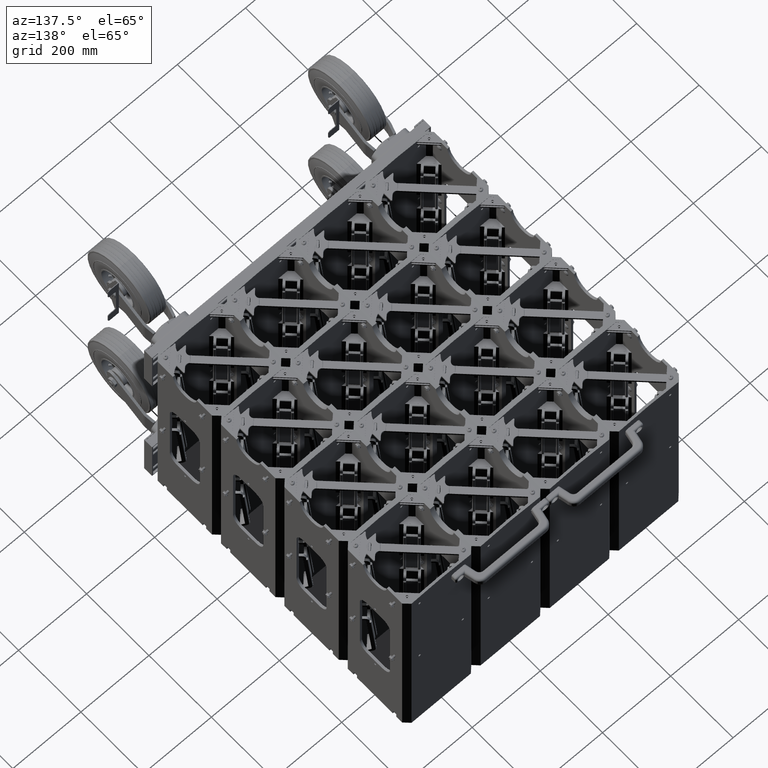
[diagram: clean part render]
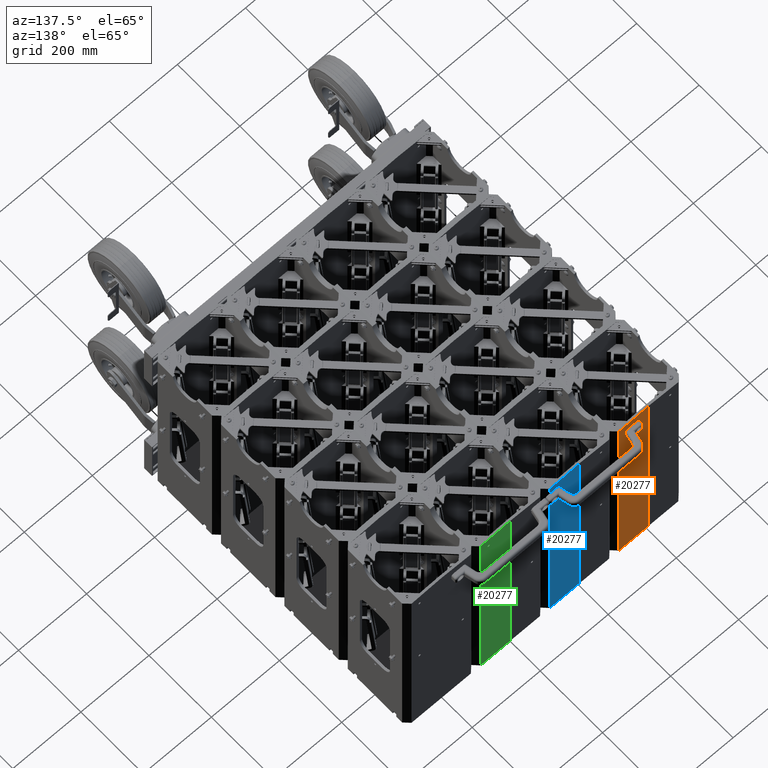
[diagram: same view with three faces highlighted in distinct colors, each labeled with its STEP entity id]
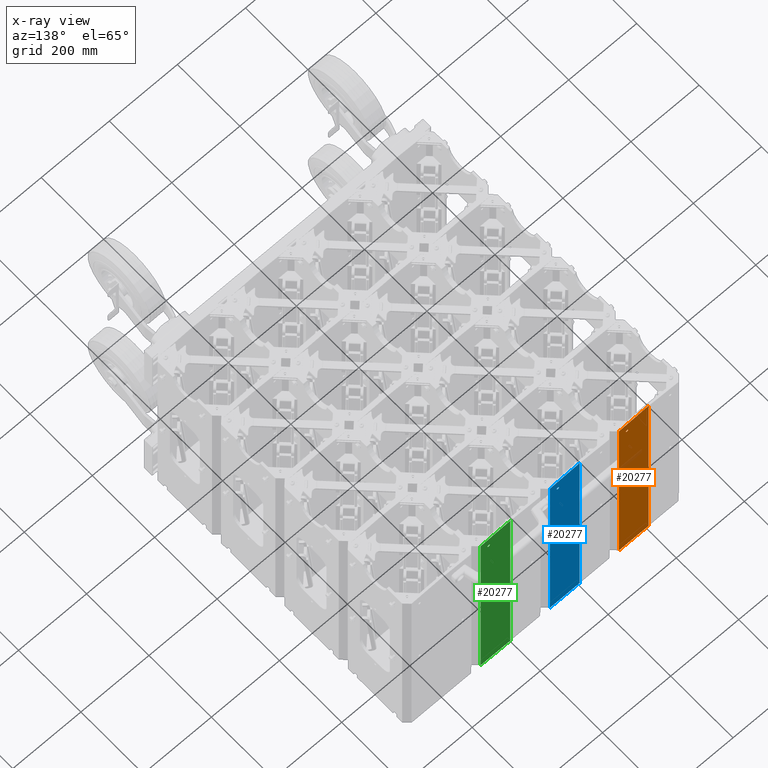
[diagram: x-ray of the same camera — body ghosted, the three highlighted faces saturated]
A machine part, auxiliary view with three faces highlighted in distinct colors.
The next image is the same camera in x-ray (body ghosted, the three faces saturated) — at least one of them is partly hidden behind the body in this view.
Their STEP definitions:

[orange] entity #20277 — the highlighted planar face has unit normal (-0, -1, -0).
#1729 = AXIS2_PLACEMENT_3D ( 'NONE', #6154, #6145, #6155 ) ;
#2236 = AXIS2_PLACEMENT_3D ( 'NONE', #14352, #14359, #14361 ) ;
#2310 = AXIS2_PLACEMENT_3D ( 'NONE', #15229, #15263, #15264 ) ;
#2311 = AXIS2_PLACEMENT_3D ( 'NONE', #15205, #15276, #15277 ) ;
#5755 = CIRCLE ( 'NONE', #1729, 0.1330000000000002000 ) ;
#6145 = DIRECTION ( 'NONE',  ( -1.000000000000000000, -1.365923996832129600E-016, 0.0000000000000000000 ) ) ;
#6154 = CARTESIAN_POINT ( 'NONE',  ( 4.000000000000005300, 2.499999999999991600, -0.1745312500000002500 ) ) ;
#6155 = DIRECTION ( 'NONE',  ( 0.0000000000000000000, -1.000000000000000000, 0.0000000000000000000 ) ) ;
#8089 = CIRCLE ( 'NONE', #2236, 0.1329999999999996500 ) ;
#8151 = LINE ( 'NONE', #14541, #8153 ) ;
#8153 = VECTOR ( 'NONE', #14560, 39.37007874015748100 ) ;
#8381 = LINE ( 'NONE', #15189, #8382 ) ;
#8382 = VECTOR ( 'NONE', #15190, 39.37007874015748100 ) ;
#11339 = CARTESIAN_POINT ( 'NONE',  ( 4.000000000000005300, 2.632999999999991100, -0.1745312500000002500 ) ) ;
#11340 = CARTESIAN_POINT ( 'NONE',  ( 4.000000000000005300, 2.366999999999991100, -0.1745312500000002500 ) ) ;
#11346 = CARTESIAN_POINT ( 'NONE',  ( 4.000000000000014200, 2.632999999999991100, -10.67453124999999800 ) ) ;
#11347 = CARTESIAN_POINT ( 'NONE',  ( 4.000000000000014200, 2.366999999999991600, -10.67453124999999800 ) ) ;
#11430 = CARTESIAN_POINT ( 'NONE',  ( 4.000000000000000900, -8.741913579725642300E-015, -12.10499999999999900 ) ) ;
#11431 = CARTESIAN_POINT ( 'NONE',  ( 3.999999999999992500, -8.741913579725642300E-015, 12.10500000000000200 ) ) ;
#11570 = CARTESIAN_POINT ( 'NONE',  ( 4.000000000000000900, 3.437500000000000900, 12.10500000000000200 ) ) ;
#11572 = CARTESIAN_POINT ( 'NONE',  ( 4.000000000000005300, 3.437499999999996400, -11.92453124999999800 ) ) ;
#14352 = CARTESIAN_POINT ( 'NONE',  ( 4.000000000000014200, 2.499999999999991600, -10.67453124999999800 ) ) ;
#14359 = DIRECTION ( 'NONE',  ( -1.000000000000000000, -1.365923996832129600E-016, 0.0000000000000000000 ) ) ;
#14361 = DIRECTION ( 'NONE',  ( 0.0000000000000000000, -1.000000000000000000, 0.0000000000000000000 ) ) ;
#14541 = CARTESIAN_POINT ( 'NONE',  ( 3.999999999999992500, -8.741913579725642300E-015, 12.10500000000000200 ) ) ;
#14560 = DIRECTION ( 'NONE',  ( 0.0000000000000000000, 0.0000000000000000000, -1.000000000000000000 ) ) ;
#15189 = CARTESIAN_POINT ( 'NONE',  ( 4.000000000000005300, 3.999999999999992500, -11.89499999999999800 ) ) ;
#15190 = DIRECTION ( 'NONE',  ( 1.787262988391355300E-031, -0.9986247173150795100, -0.05242779765904172200 ) ) ;
#15205 = CARTESIAN_POINT ( 'NONE',  ( 4.000000000000014200, 2.499999999999991600, -10.67453124999999800 ) ) ;
#15229 = CARTESIAN_POINT ( 'NONE',  ( 4.000000000000005300, 2.499999999999991600, -0.1745312500000002500 ) ) ;
#15238 = CARTESIAN_POINT ( 'NONE',  ( 4.000000000000000900, 3.999999999999992500, 12.10500000000000200 ) ) ;
#15240 = DIRECTION ( 'NONE',  ( -1.365923996832133600E-016, 1.000000000000000000, -2.189528850507526700E-047 ) ) ;
#15242 = CARTESIAN_POINT ( 'NONE',  ( 4.000000000000000900, 3.437499999999996400, 12.10500000000000200 ) ) ;
#15244 = DIRECTION ( 'NONE',  ( 0.0000000000000000000, 0.0000000000000000000, 1.000000000000000000 ) ) ;
#15263 = DIRECTION ( 'NONE',  ( -1.000000000000000000, -1.365923996832129600E-016, 0.0000000000000000000 ) ) ;
#15264 = DIRECTION ( 'NONE',  ( 0.0000000000000000000, -1.000000000000000000, 0.0000000000000000000 ) ) ;
#15276 = DIRECTION ( 'NONE',  ( -1.000000000000000000, -1.365923996832129600E-016, 0.0000000000000000000 ) ) ;
#15277 = DIRECTION ( 'NONE',  ( 0.0000000000000000000, -1.000000000000000000, 0.0000000000000000000 ) ) ;
#16441 = LINE ( 'NONE', #15238, #16442 ) ;
#16442 = VECTOR ( 'NONE', #15240, 39.37007874015748100 ) ;
#16443 = LINE ( 'NONE', #15242, #16444 ) ;
#16444 = VECTOR ( 'NONE', #15244, 39.37007874015748100 ) ;
#16454 = CIRCLE ( 'NONE', #2310, 0.1330000000000002000 ) ;
#16458 = CIRCLE ( 'NONE', #2311, 0.1329999999999996500 ) ;
#20277 = ADVANCED_FACE ( 'NONE', ( #32616, #32617, #32619 ), #29593, .F. ) ;
#24082 = EDGE_LOOP ( 'NONE', ( #44049, #44050 ) ) ;
#24085 = EDGE_LOOP ( 'NONE', ( #44051, #44052 ) ) ;
#24086 = EDGE_LOOP ( 'NONE', ( #44053, #44054, #44055, #44056 ) ) ;
#27310 = AXIS2_PLACEMENT_3D ( 'NONE', #29591, #29595, #29596 ) ;
#29591 = CARTESIAN_POINT ( 'NONE',  ( 4.000000000000000900, 3.999999999999992500, 12.10500000000000200 ) ) ;
#29593 = PLANE ( 'NONE',  #27310 ) ;
#29595 = DIRECTION ( 'NONE',  ( -1.000000000000000000, -1.365923996832133600E-016, 8.636168555094444600E-078 ) ) ;
#29596 = DIRECTION ( 'NONE',  ( 1.365923996832133600E-016, -1.000000000000000000, 2.189528850507526700E-047 ) ) ;
#32616 = FACE_BOUND ( 'NONE', #24082, .T. ) ;
#32617 = FACE_BOUND ( 'NONE', #24085, .T. ) ;
#32619 = FACE_OUTER_BOUND ( 'NONE', #24086, .T. ) ;
#35652 = EDGE_CURVE ( 'NONE', #38190, #38191, #5755, .T. ) ;
#38190 = VERTEX_POINT ( 'NONE', #11339 ) ;
#38191 = VERTEX_POINT ( 'NONE', #11340 ) ;
#38194 = VERTEX_POINT ( 'NONE', #11346 ) ;
#38195 = VERTEX_POINT ( 'NONE', #11347 ) ;
#38243 = VERTEX_POINT ( 'NONE', #11430 ) ;
#38244 = VERTEX_POINT ( 'NONE', #11431 ) ;
#38325 = VERTEX_POINT ( 'NONE', #11570 ) ;
#38326 = VERTEX_POINT ( 'NONE', #11572 ) ;
#44049 = ORIENTED_EDGE ( 'NONE', *, *, #44390, .T. ) ;
#44050 = ORIENTED_EDGE ( 'NONE', *, *, #35652, .T. ) ;
#44051 = ORIENTED_EDGE ( 'NONE', *, *, #44393, .T. ) ;
#44052 = ORIENTED_EDGE ( 'NONE', *, *, #44204, .T. ) ;
#44053 = ORIENTED_EDGE ( 'NONE', *, *, #44384, .F. ) ;
#44054 = ORIENTED_EDGE ( 'NONE', *, *, #44246, .T. ) ;
#44055 = ORIENTED_EDGE ( 'NONE', *, *, #44375, .F. ) ;
#44056 = ORIENTED_EDGE ( 'NONE', *, *, #44385, .T. ) ;
#44204 = EDGE_CURVE ( 'NONE', #38194, #38195, #8089, .T. ) ;
#44246 = EDGE_CURVE ( 'NONE', #38244, #38243, #8151, .T. ) ;
#44375 = EDGE_CURVE ( 'NONE', #38326, #38243, #8381, .T. ) ;
#44384 = EDGE_CURVE ( 'NONE', #38244, #38325, #16441, .T. ) ;
#44385 = EDGE_CURVE ( 'NONE', #38326, #38325, #16443, .T. ) ;
#44390 = EDGE_CURVE ( 'NONE', #38191, #38190, #16454, .T. ) ;
#44393 = EDGE_CURVE ( 'NONE', #38195, #38194, #16458, .T. ) ;

[blue] entity #20277 — the highlighted planar face has unit normal (-0, -1, -0).
#1729 = AXIS2_PLACEMENT_3D ( 'NONE', #6154, #6145, #6155 ) ;
#2236 = AXIS2_PLACEMENT_3D ( 'NONE', #14352, #14359, #14361 ) ;
#2310 = AXIS2_PLACEMENT_3D ( 'NONE', #15229, #15263, #15264 ) ;
#2311 = AXIS2_PLACEMENT_3D ( 'NONE', #15205, #15276, #15277 ) ;
#5755 = CIRCLE ( 'NONE', #1729, 0.1330000000000002000 ) ;
#6145 = DIRECTION ( 'NONE',  ( -1.000000000000000000, -1.365923996832129600E-016, 0.0000000000000000000 ) ) ;
#6154 = CARTESIAN_POINT ( 'NONE',  ( 4.000000000000005300, 2.499999999999991600, -0.1745312500000002500 ) ) ;
#6155 = DIRECTION ( 'NONE',  ( 0.0000000000000000000, -1.000000000000000000, 0.0000000000000000000 ) ) ;
#8089 = CIRCLE ( 'NONE', #2236, 0.1329999999999996500 ) ;
#8151 = LINE ( 'NONE', #14541, #8153 ) ;
#8153 = VECTOR ( 'NONE', #14560, 39.37007874015748100 ) ;
#8381 = LINE ( 'NONE', #15189, #8382 ) ;
#8382 = VECTOR ( 'NONE', #15190, 39.37007874015748100 ) ;
#11339 = CARTESIAN_POINT ( 'NONE',  ( 4.000000000000005300, 2.632999999999991100, -0.1745312500000002500 ) ) ;
#11340 = CARTESIAN_POINT ( 'NONE',  ( 4.000000000000005300, 2.366999999999991100, -0.1745312500000002500 ) ) ;
#11346 = CARTESIAN_POINT ( 'NONE',  ( 4.000000000000014200, 2.632999999999991100, -10.67453124999999800 ) ) ;
#11347 = CARTESIAN_POINT ( 'NONE',  ( 4.000000000000014200, 2.366999999999991600, -10.67453124999999800 ) ) ;
#11430 = CARTESIAN_POINT ( 'NONE',  ( 4.000000000000000900, -8.741913579725642300E-015, -12.10499999999999900 ) ) ;
#11431 = CARTESIAN_POINT ( 'NONE',  ( 3.999999999999992500, -8.741913579725642300E-015, 12.10500000000000200 ) ) ;
#11570 = CARTESIAN_POINT ( 'NONE',  ( 4.000000000000000900, 3.437500000000000900, 12.10500000000000200 ) ) ;
#11572 = CARTESIAN_POINT ( 'NONE',  ( 4.000000000000005300, 3.437499999999996400, -11.92453124999999800 ) ) ;
#14352 = CARTESIAN_POINT ( 'NONE',  ( 4.000000000000014200, 2.499999999999991600, -10.67453124999999800 ) ) ;
#14359 = DIRECTION ( 'NONE',  ( -1.000000000000000000, -1.365923996832129600E-016, 0.0000000000000000000 ) ) ;
#14361 = DIRECTION ( 'NONE',  ( 0.0000000000000000000, -1.000000000000000000, 0.0000000000000000000 ) ) ;
#14541 = CARTESIAN_POINT ( 'NONE',  ( 3.999999999999992500, -8.741913579725642300E-015, 12.10500000000000200 ) ) ;
#14560 = DIRECTION ( 'NONE',  ( 0.0000000000000000000, 0.0000000000000000000, -1.000000000000000000 ) ) ;
#15189 = CARTESIAN_POINT ( 'NONE',  ( 4.000000000000005300, 3.999999999999992500, -11.89499999999999800 ) ) ;
#15190 = DIRECTION ( 'NONE',  ( 1.787262988391355300E-031, -0.9986247173150795100, -0.05242779765904172200 ) ) ;
#15205 = CARTESIAN_POINT ( 'NONE',  ( 4.000000000000014200, 2.499999999999991600, -10.67453124999999800 ) ) ;
#15229 = CARTESIAN_POINT ( 'NONE',  ( 4.000000000000005300, 2.499999999999991600, -0.1745312500000002500 ) ) ;
#15238 = CARTESIAN_POINT ( 'NONE',  ( 4.000000000000000900, 3.999999999999992500, 12.10500000000000200 ) ) ;
#15240 = DIRECTION ( 'NONE',  ( -1.365923996832133600E-016, 1.000000000000000000, -2.189528850507526700E-047 ) ) ;
#15242 = CARTESIAN_POINT ( 'NONE',  ( 4.000000000000000900, 3.437499999999996400, 12.10500000000000200 ) ) ;
#15244 = DIRECTION ( 'NONE',  ( 0.0000000000000000000, 0.0000000000000000000, 1.000000000000000000 ) ) ;
#15263 = DIRECTION ( 'NONE',  ( -1.000000000000000000, -1.365923996832129600E-016, 0.0000000000000000000 ) ) ;
#15264 = DIRECTION ( 'NONE',  ( 0.0000000000000000000, -1.000000000000000000, 0.0000000000000000000 ) ) ;
#15276 = DIRECTION ( 'NONE',  ( -1.000000000000000000, -1.365923996832129600E-016, 0.0000000000000000000 ) ) ;
#15277 = DIRECTION ( 'NONE',  ( 0.0000000000000000000, -1.000000000000000000, 0.0000000000000000000 ) ) ;
#16441 = LINE ( 'NONE', #15238, #16442 ) ;
#16442 = VECTOR ( 'NONE', #15240, 39.37007874015748100 ) ;
#16443 = LINE ( 'NONE', #15242, #16444 ) ;
#16444 = VECTOR ( 'NONE', #15244, 39.37007874015748100 ) ;
#16454 = CIRCLE ( 'NONE', #2310, 0.1330000000000002000 ) ;
#16458 = CIRCLE ( 'NONE', #2311, 0.1329999999999996500 ) ;
#20277 = ADVANCED_FACE ( 'NONE', ( #32616, #32617, #32619 ), #29593, .F. ) ;
#24082 = EDGE_LOOP ( 'NONE', ( #44049, #44050 ) ) ;
#24085 = EDGE_LOOP ( 'NONE', ( #44051, #44052 ) ) ;
#24086 = EDGE_LOOP ( 'NONE', ( #44053, #44054, #44055, #44056 ) ) ;
#27310 = AXIS2_PLACEMENT_3D ( 'NONE', #29591, #29595, #29596 ) ;
#29591 = CARTESIAN_POINT ( 'NONE',  ( 4.000000000000000900, 3.999999999999992500, 12.10500000000000200 ) ) ;
#29593 = PLANE ( 'NONE',  #27310 ) ;
#29595 = DIRECTION ( 'NONE',  ( -1.000000000000000000, -1.365923996832133600E-016, 8.636168555094444600E-078 ) ) ;
#29596 = DIRECTION ( 'NONE',  ( 1.365923996832133600E-016, -1.000000000000000000, 2.189528850507526700E-047 ) ) ;
#32616 = FACE_BOUND ( 'NONE', #24082, .T. ) ;
#32617 = FACE_BOUND ( 'NONE', #24085, .T. ) ;
#32619 = FACE_OUTER_BOUND ( 'NONE', #24086, .T. ) ;
#35652 = EDGE_CURVE ( 'NONE', #38190, #38191, #5755, .T. ) ;
#38190 = VERTEX_POINT ( 'NONE', #11339 ) ;
#38191 = VERTEX_POINT ( 'NONE', #11340 ) ;
#38194 = VERTEX_POINT ( 'NONE', #11346 ) ;
#38195 = VERTEX_POINT ( 'NONE', #11347 ) ;
#38243 = VERTEX_POINT ( 'NONE', #11430 ) ;
#38244 = VERTEX_POINT ( 'NONE', #11431 ) ;
#38325 = VERTEX_POINT ( 'NONE', #11570 ) ;
#38326 = VERTEX_POINT ( 'NONE', #11572 ) ;
#44049 = ORIENTED_EDGE ( 'NONE', *, *, #44390, .T. ) ;
#44050 = ORIENTED_EDGE ( 'NONE', *, *, #35652, .T. ) ;
#44051 = ORIENTED_EDGE ( 'NONE', *, *, #44393, .T. ) ;
#44052 = ORIENTED_EDGE ( 'NONE', *, *, #44204, .T. ) ;
#44053 = ORIENTED_EDGE ( 'NONE', *, *, #44384, .F. ) ;
#44054 = ORIENTED_EDGE ( 'NONE', *, *, #44246, .T. ) ;
#44055 = ORIENTED_EDGE ( 'NONE', *, *, #44375, .F. ) ;
#44056 = ORIENTED_EDGE ( 'NONE', *, *, #44385, .T. ) ;
#44204 = EDGE_CURVE ( 'NONE', #38194, #38195, #8089, .T. ) ;
#44246 = EDGE_CURVE ( 'NONE', #38244, #38243, #8151, .T. ) ;
#44375 = EDGE_CURVE ( 'NONE', #38326, #38243, #8381, .T. ) ;
#44384 = EDGE_CURVE ( 'NONE', #38244, #38325, #16441, .T. ) ;
#44385 = EDGE_CURVE ( 'NONE', #38326, #38325, #16443, .T. ) ;
#44390 = EDGE_CURVE ( 'NONE', #38191, #38190, #16454, .T. ) ;
#44393 = EDGE_CURVE ( 'NONE', #38195, #38194, #16458, .T. ) ;

[green] entity #20277 — the highlighted planar face has unit normal (-0, -1, -0).
#1729 = AXIS2_PLACEMENT_3D ( 'NONE', #6154, #6145, #6155 ) ;
#2236 = AXIS2_PLACEMENT_3D ( 'NONE', #14352, #14359, #14361 ) ;
#2310 = AXIS2_PLACEMENT_3D ( 'NONE', #15229, #15263, #15264 ) ;
#2311 = AXIS2_PLACEMENT_3D ( 'NONE', #15205, #15276, #15277 ) ;
#5755 = CIRCLE ( 'NONE', #1729, 0.1330000000000002000 ) ;
#6145 = DIRECTION ( 'NONE',  ( -1.000000000000000000, -1.365923996832129600E-016, 0.0000000000000000000 ) ) ;
#6154 = CARTESIAN_POINT ( 'NONE',  ( 4.000000000000005300, 2.499999999999991600, -0.1745312500000002500 ) ) ;
#6155 = DIRECTION ( 'NONE',  ( 0.0000000000000000000, -1.000000000000000000, 0.0000000000000000000 ) ) ;
#8089 = CIRCLE ( 'NONE', #2236, 0.1329999999999996500 ) ;
#8151 = LINE ( 'NONE', #14541, #8153 ) ;
#8153 = VECTOR ( 'NONE', #14560, 39.37007874015748100 ) ;
#8381 = LINE ( 'NONE', #15189, #8382 ) ;
#8382 = VECTOR ( 'NONE', #15190, 39.37007874015748100 ) ;
#11339 = CARTESIAN_POINT ( 'NONE',  ( 4.000000000000005300, 2.632999999999991100, -0.1745312500000002500 ) ) ;
#11340 = CARTESIAN_POINT ( 'NONE',  ( 4.000000000000005300, 2.366999999999991100, -0.1745312500000002500 ) ) ;
#11346 = CARTESIAN_POINT ( 'NONE',  ( 4.000000000000014200, 2.632999999999991100, -10.67453124999999800 ) ) ;
#11347 = CARTESIAN_POINT ( 'NONE',  ( 4.000000000000014200, 2.366999999999991600, -10.67453124999999800 ) ) ;
#11430 = CARTESIAN_POINT ( 'NONE',  ( 4.000000000000000900, -8.741913579725642300E-015, -12.10499999999999900 ) ) ;
#11431 = CARTESIAN_POINT ( 'NONE',  ( 3.999999999999992500, -8.741913579725642300E-015, 12.10500000000000200 ) ) ;
#11570 = CARTESIAN_POINT ( 'NONE',  ( 4.000000000000000900, 3.437500000000000900, 12.10500000000000200 ) ) ;
#11572 = CARTESIAN_POINT ( 'NONE',  ( 4.000000000000005300, 3.437499999999996400, -11.92453124999999800 ) ) ;
#14352 = CARTESIAN_POINT ( 'NONE',  ( 4.000000000000014200, 2.499999999999991600, -10.67453124999999800 ) ) ;
#14359 = DIRECTION ( 'NONE',  ( -1.000000000000000000, -1.365923996832129600E-016, 0.0000000000000000000 ) ) ;
#14361 = DIRECTION ( 'NONE',  ( 0.0000000000000000000, -1.000000000000000000, 0.0000000000000000000 ) ) ;
#14541 = CARTESIAN_POINT ( 'NONE',  ( 3.999999999999992500, -8.741913579725642300E-015, 12.10500000000000200 ) ) ;
#14560 = DIRECTION ( 'NONE',  ( 0.0000000000000000000, 0.0000000000000000000, -1.000000000000000000 ) ) ;
#15189 = CARTESIAN_POINT ( 'NONE',  ( 4.000000000000005300, 3.999999999999992500, -11.89499999999999800 ) ) ;
#15190 = DIRECTION ( 'NONE',  ( 1.787262988391355300E-031, -0.9986247173150795100, -0.05242779765904172200 ) ) ;
#15205 = CARTESIAN_POINT ( 'NONE',  ( 4.000000000000014200, 2.499999999999991600, -10.67453124999999800 ) ) ;
#15229 = CARTESIAN_POINT ( 'NONE',  ( 4.000000000000005300, 2.499999999999991600, -0.1745312500000002500 ) ) ;
#15238 = CARTESIAN_POINT ( 'NONE',  ( 4.000000000000000900, 3.999999999999992500, 12.10500000000000200 ) ) ;
#15240 = DIRECTION ( 'NONE',  ( -1.365923996832133600E-016, 1.000000000000000000, -2.189528850507526700E-047 ) ) ;
#15242 = CARTESIAN_POINT ( 'NONE',  ( 4.000000000000000900, 3.437499999999996400, 12.10500000000000200 ) ) ;
#15244 = DIRECTION ( 'NONE',  ( 0.0000000000000000000, 0.0000000000000000000, 1.000000000000000000 ) ) ;
#15263 = DIRECTION ( 'NONE',  ( -1.000000000000000000, -1.365923996832129600E-016, 0.0000000000000000000 ) ) ;
#15264 = DIRECTION ( 'NONE',  ( 0.0000000000000000000, -1.000000000000000000, 0.0000000000000000000 ) ) ;
#15276 = DIRECTION ( 'NONE',  ( -1.000000000000000000, -1.365923996832129600E-016, 0.0000000000000000000 ) ) ;
#15277 = DIRECTION ( 'NONE',  ( 0.0000000000000000000, -1.000000000000000000, 0.0000000000000000000 ) ) ;
#16441 = LINE ( 'NONE', #15238, #16442 ) ;
#16442 = VECTOR ( 'NONE', #15240, 39.37007874015748100 ) ;
#16443 = LINE ( 'NONE', #15242, #16444 ) ;
#16444 = VECTOR ( 'NONE', #15244, 39.37007874015748100 ) ;
#16454 = CIRCLE ( 'NONE', #2310, 0.1330000000000002000 ) ;
#16458 = CIRCLE ( 'NONE', #2311, 0.1329999999999996500 ) ;
#20277 = ADVANCED_FACE ( 'NONE', ( #32616, #32617, #32619 ), #29593, .F. ) ;
#24082 = EDGE_LOOP ( 'NONE', ( #44049, #44050 ) ) ;
#24085 = EDGE_LOOP ( 'NONE', ( #44051, #44052 ) ) ;
#24086 = EDGE_LOOP ( 'NONE', ( #44053, #44054, #44055, #44056 ) ) ;
#27310 = AXIS2_PLACEMENT_3D ( 'NONE', #29591, #29595, #29596 ) ;
#29591 = CARTESIAN_POINT ( 'NONE',  ( 4.000000000000000900, 3.999999999999992500, 12.10500000000000200 ) ) ;
#29593 = PLANE ( 'NONE',  #27310 ) ;
#29595 = DIRECTION ( 'NONE',  ( -1.000000000000000000, -1.365923996832133600E-016, 8.636168555094444600E-078 ) ) ;
#29596 = DIRECTION ( 'NONE',  ( 1.365923996832133600E-016, -1.000000000000000000, 2.189528850507526700E-047 ) ) ;
#32616 = FACE_BOUND ( 'NONE', #24082, .T. ) ;
#32617 = FACE_BOUND ( 'NONE', #24085, .T. ) ;
#32619 = FACE_OUTER_BOUND ( 'NONE', #24086, .T. ) ;
#35652 = EDGE_CURVE ( 'NONE', #38190, #38191, #5755, .T. ) ;
#38190 = VERTEX_POINT ( 'NONE', #11339 ) ;
#38191 = VERTEX_POINT ( 'NONE', #11340 ) ;
#38194 = VERTEX_POINT ( 'NONE', #11346 ) ;
#38195 = VERTEX_POINT ( 'NONE', #11347 ) ;
#38243 = VERTEX_POINT ( 'NONE', #11430 ) ;
#38244 = VERTEX_POINT ( 'NONE', #11431 ) ;
#38325 = VERTEX_POINT ( 'NONE', #11570 ) ;
#38326 = VERTEX_POINT ( 'NONE', #11572 ) ;
#44049 = ORIENTED_EDGE ( 'NONE', *, *, #44390, .T. ) ;
#44050 = ORIENTED_EDGE ( 'NONE', *, *, #35652, .T. ) ;
#44051 = ORIENTED_EDGE ( 'NONE', *, *, #44393, .T. ) ;
#44052 = ORIENTED_EDGE ( 'NONE', *, *, #44204, .T. ) ;
#44053 = ORIENTED_EDGE ( 'NONE', *, *, #44384, .F. ) ;
#44054 = ORIENTED_EDGE ( 'NONE', *, *, #44246, .T. ) ;
#44055 = ORIENTED_EDGE ( 'NONE', *, *, #44375, .F. ) ;
#44056 = ORIENTED_EDGE ( 'NONE', *, *, #44385, .T. ) ;
#44204 = EDGE_CURVE ( 'NONE', #38194, #38195, #8089, .T. ) ;
#44246 = EDGE_CURVE ( 'NONE', #38244, #38243, #8151, .T. ) ;
#44375 = EDGE_CURVE ( 'NONE', #38326, #38243, #8381, .T. ) ;
#44384 = EDGE_CURVE ( 'NONE', #38244, #38325, #16441, .T. ) ;
#44385 = EDGE_CURVE ( 'NONE', #38326, #38325, #16443, .T. ) ;
#44390 = EDGE_CURVE ( 'NONE', #38191, #38190, #16454, .T. ) ;
#44393 = EDGE_CURVE ( 'NONE', #38195, #38194, #16458, .T. ) ;